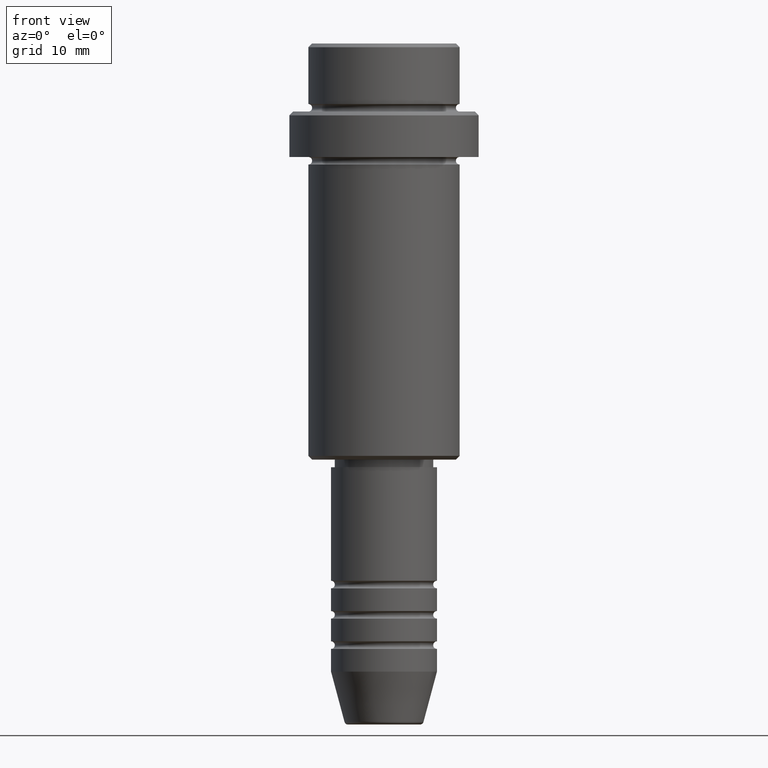
[diagram: clean part render]
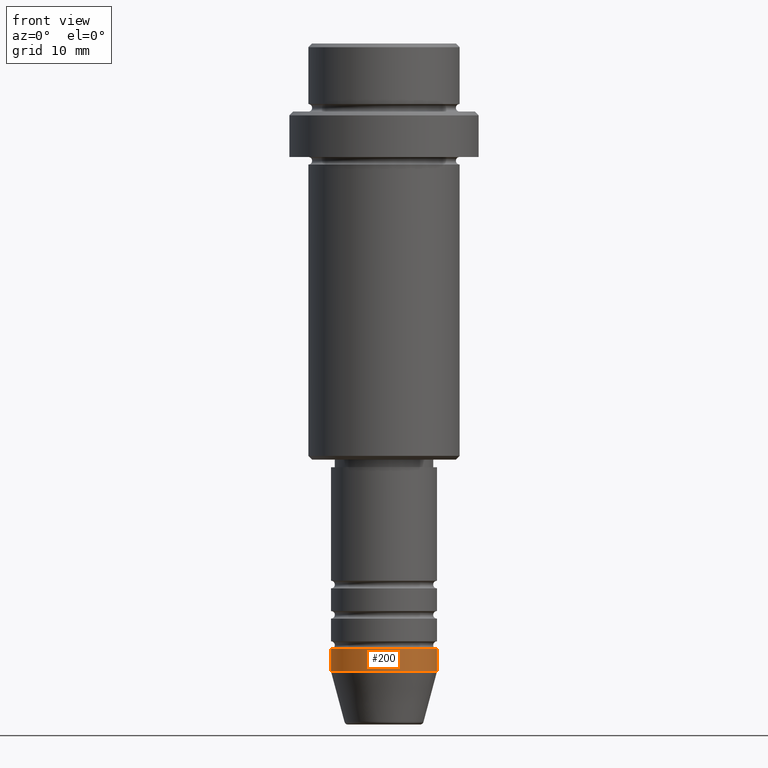
[diagram: same view with one face highlighted and labeled with its STEP entity id]
A machine part, front view. The second image highlights one B-rep face of the part: STEP entity #200.
In plain terms, the highlighted cylindrical surface (partial cylindrical patch) has radius 7 mm, axis along (-0, -0, 1).
Its self-contained STEP definition (entity closure, byte-faithful):
#28 = DIRECTION ( 'NONE',  ( -0.000000000000000000, -0.000000000000000000, 1.000000000000000000 ) ) ;
#35 = DIRECTION ( 'NONE',  ( -0.000000000000000000, -0.000000000000000000, 1.000000000000000000 ) ) ;
#65 = VERTEX_POINT ( 'NONE', #78 ) ;
#76 = DIRECTION ( 'NONE',  ( -0.000000000000000000, -0.000000000000000000, 1.000000000000000000 ) ) ;
#78 = CARTESIAN_POINT ( 'NONE',  ( 7.000000000000000000, 0.000000000000000000, -83.00000000000000000 ) ) ;
#197 = CARTESIAN_POINT ( 'NONE',  ( -7.000000000000000000, 8.572527594031473190E-16, -83.00000000000000000 ) ) ;
#200 = ADVANCED_FACE ( 'NONE', ( #1099 ), #891, .T. ) ;
#299 = CARTESIAN_POINT ( 'NONE',  ( 0.000000000000000000, 0.000000000000000000, -80.00000000000000000 ) ) ;
#313 = CIRCLE ( 'NONE', #1115, 7.000000000000000000 ) ;
#352 = LINE ( 'NONE', #672, #1113 ) ;
#409 = CIRCLE ( 'NONE', #599, 7.000000000000000000 ) ;
#450 = DIRECTION ( 'NONE',  ( -0.000000000000000000, -0.000000000000000000, 1.000000000000000000 ) ) ;
#466 = VERTEX_POINT ( 'NONE', #493 ) ;
#493 = CARTESIAN_POINT ( 'NONE',  ( 7.000000000000000000, 0.000000000000000000, -80.00000000000000000 ) ) ;
#500 = DIRECTION ( 'NONE',  ( 1.000000000000000000, 0.000000000000000000, 0.000000000000000000 ) ) ;
#508 = ORIENTED_EDGE ( 'NONE', *, *, #1123, .T. ) ;
#509 = DIRECTION ( 'NONE',  ( -0.000000000000000000, -0.000000000000000000, 1.000000000000000000 ) ) ;
#521 = VECTOR ( 'NONE', #28, 1000.000000000000000 ) ;
#599 = AXIS2_PLACEMENT_3D ( 'NONE', #1041, #509, #1150 ) ;
#618 = EDGE_CURVE ( 'NONE', #888, #893, #352, .T. ) ;
#663 = DIRECTION ( 'NONE',  ( 1.000000000000000000, 0.000000000000000000, 0.000000000000000000 ) ) ;
#672 = CARTESIAN_POINT ( 'NONE',  ( -7.000000000000000000, 8.572527594031473190E-16, 0.000000000000000000 ) ) ;
#685 = LINE ( 'NONE', #1126, #521 ) ;
#747 = AXIS2_PLACEMENT_3D ( 'NONE', #1082, #450, #663 ) ;
#888 = VERTEX_POINT ( 'NONE', #197 ) ;
#891 = CYLINDRICAL_SURFACE ( 'NONE', #747, 7.000000000000000000 ) ;
#893 = VERTEX_POINT ( 'NONE', #1271 ) ;
#917 = EDGE_CURVE ( 'NONE', #893, #466, #313, .T. ) ;
#1041 = CARTESIAN_POINT ( 'NONE',  ( 0.000000000000000000, 0.000000000000000000, -83.00000000000000000 ) ) ;
#1081 = ORIENTED_EDGE ( 'NONE', *, *, #1209, .T. ) ;
#1082 = CARTESIAN_POINT ( 'NONE',  ( 0.000000000000000000, 0.000000000000000000, 0.000000000000000000 ) ) ;
#1099 = FACE_OUTER_BOUND ( 'NONE', #1304, .T. ) ;
#1113 = VECTOR ( 'NONE', #35, 1000.000000000000000 ) ;
#1115 = AXIS2_PLACEMENT_3D ( 'NONE', #299, #76, #500 ) ;
#1123 = EDGE_CURVE ( 'NONE', #888, #65, #409, .T. ) ;
#1126 = CARTESIAN_POINT ( 'NONE',  ( 7.000000000000000000, 0.000000000000000000, 0.000000000000000000 ) ) ;
#1150 = DIRECTION ( 'NONE',  ( 1.000000000000000000, 0.000000000000000000, 0.000000000000000000 ) ) ;
#1199 = ORIENTED_EDGE ( 'NONE', *, *, #917, .F. ) ;
#1209 = EDGE_CURVE ( 'NONE', #65, #466, #685, .T. ) ;
#1271 = CARTESIAN_POINT ( 'NONE',  ( -7.000000000000000000, 8.572527594031473190E-16, -80.00000000000000000 ) ) ;
#1282 = ORIENTED_EDGE ( 'NONE', *, *, #618, .F. ) ;
#1304 = EDGE_LOOP ( 'NONE', ( #1282, #508, #1081, #1199 ) ) ;